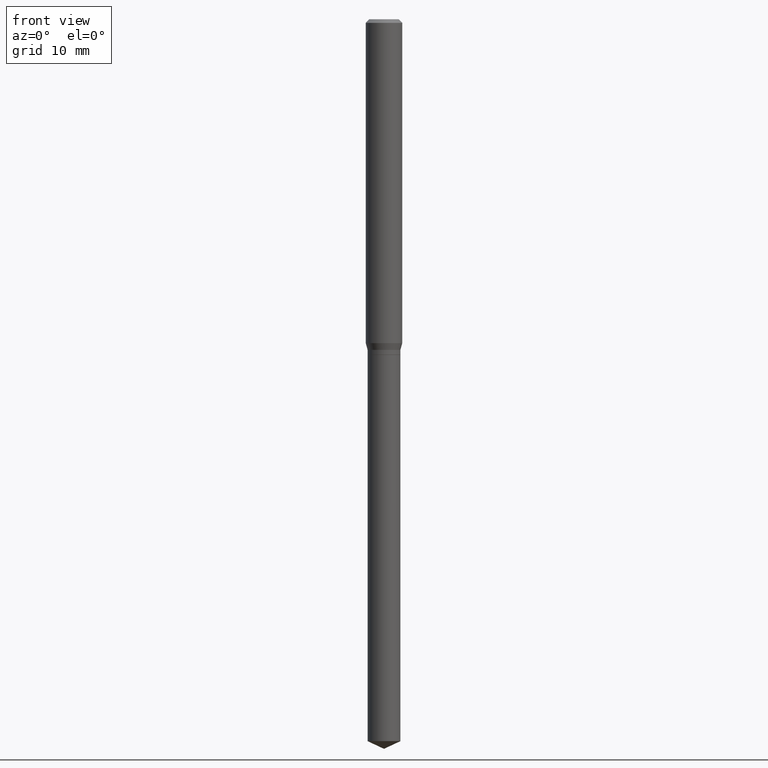
[diagram: clean part render]
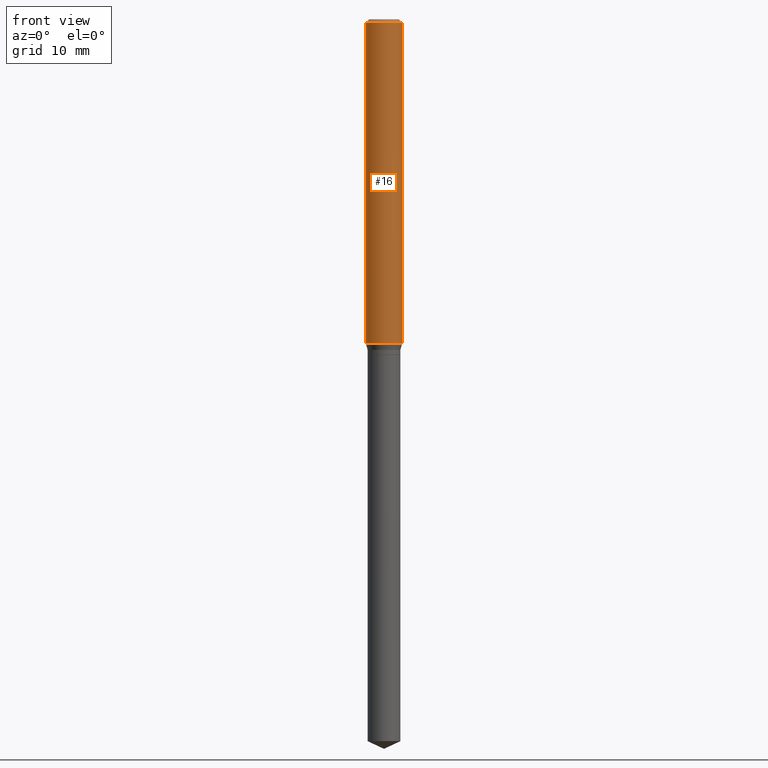
[diagram: same view with one face highlighted and labeled with its STEP entity id]
A machine part, front view. The second image highlights one B-rep face of the part: STEP entity #16.
In plain terms, the highlighted cylindrical surface (edge-blend (fillet) strip) has radius 1.4999 mm, axis along (-0, 0, 1).
Its self-contained STEP definition (entity closure, byte-faithful):
#16 = ADVANCED_FACE ( 'NONE', ( #383 ), #152, .T. ) ;
#28 = VERTEX_POINT ( 'NONE', #222 ) ;
#37 = CARTESIAN_POINT ( 'NONE',  ( 0.000000000000000000, 0.000000000000000000, 0.000000000000000000 ) ) ;
#42 = CARTESIAN_POINT ( 'NONE',  ( -0.05905000000000006771, 4.195754854663396409E-16, -2.904631170795525045E-30 ) ) ;
#44 = LINE ( 'NONE', #42, #467 ) ;
#59 = VERTEX_POINT ( 'NONE', #374 ) ;
#60 = EDGE_CURVE ( 'NONE', #59, #28, #457, .T. ) ;
#65 = ORIENTED_EDGE ( 'NONE', *, *, #90, .T. ) ;
#81 = CIRCLE ( 'NONE', #356, 0.05904999999999999832 ) ;
#87 = DIRECTION ( 'NONE',  ( -2.445468806185136597E-29, 3.491481338843145583E-15, 1.000000000000000000 ) ) ;
#88 = VECTOR ( 'NONE', #371, 39.37007874015748143 ) ;
#90 = EDGE_CURVE ( 'NONE', #213, #59, #475, .T. ) ;
#119 = ORIENTED_EDGE ( 'NONE', *, *, #160, .F. ) ;
#121 = VERTEX_POINT ( 'NONE', #268 ) ;
#129 = CARTESIAN_POINT ( 'NONE',  ( 2.888098660104664642E-31, -4.123439461173780879E-17, -0.01181000000000007565 ) ) ;
#133 = CARTESIAN_POINT ( 'NONE',  ( -0.05905000000000013016, -3.241176011838822810E-15, -1.048480900235343238 ) ) ;
#152 = CYLINDRICAL_SURFACE ( 'NONE', #410, 0.05905000000000006771 ) ;
#160 = EDGE_CURVE ( 'NONE', #121, #28, #81, .T. ) ;
#190 = CARTESIAN_POINT ( 'NONE',  ( 2.564027335406442379E-29, -3.660751497305162698E-15, -1.048480900235343238 ) ) ;
#213 = VERTEX_POINT ( 'NONE', #133 ) ;
#222 = CARTESIAN_POINT ( 'NONE',  ( 0.05904999999999999832, -4.535783407291118600E-16, -0.01181000000000007565 ) ) ;
#227 = CARTESIAN_POINT ( 'NONE',  ( 0.05905000000000006771, -4.123439461173745257E-16, 2.879382386107503723E-30 ) ) ;
#231 = EDGE_CURVE ( 'NONE', #213, #121, #44, .T. ) ;
#263 = DIRECTION ( 'NONE',  ( -2.445468806185136597E-29, 3.491481338843145583E-15, 1.000000000000000000 ) ) ;
#266 = DIRECTION ( 'NONE',  ( 1.000000000000000000, -6.982962677686265133E-15, 0.000000000000000000 ) ) ;
#268 = CARTESIAN_POINT ( 'NONE',  ( -0.05904999999999999832, -1.431417460492110129E-15, -0.01181000000000007565 ) ) ;
#275 = EDGE_LOOP ( 'NONE', ( #282, #65, #326, #119 ) ) ;
#282 = ORIENTED_EDGE ( 'NONE', *, *, #231, .F. ) ;
#305 = DIRECTION ( 'NONE',  ( 1.000000000000000000, -6.982962677686266711E-15, 4.876176775795936353E-29 ) ) ;
#326 = ORIENTED_EDGE ( 'NONE', *, *, #60, .T. ) ;
#338 = DIRECTION ( 'NONE',  ( -2.445468806185136597E-29, 3.491481338843145583E-15, 1.000000000000000000 ) ) ;
#356 = AXIS2_PLACEMENT_3D ( 'NONE', #129, #87, #387 ) ;
#371 = DIRECTION ( 'NONE',  ( -2.445468806185136877E-29, 3.491481338843145188E-15, 1.000000000000000000 ) ) ;
#374 = CARTESIAN_POINT ( 'NONE',  ( 0.05905000000000013016, -4.073095443422537618E-15, -1.048480900235343238 ) ) ;
#383 = FACE_OUTER_BOUND ( 'NONE', #275, .T. ) ;
#387 = DIRECTION ( 'NONE',  ( 1.000000000000000000, -6.982962677686266711E-15, 0.000000000000000000 ) ) ;
#410 = AXIS2_PLACEMENT_3D ( 'NONE', #37, #263, #305 ) ;
#442 = AXIS2_PLACEMENT_3D ( 'NONE', #190, #338, #266 ) ;
#457 = LINE ( 'NONE', #227, #88 ) ;
#465 = DIRECTION ( 'NONE',  ( -2.445468806185136877E-29, 3.491481338843145188E-15, 1.000000000000000000 ) ) ;
#467 = VECTOR ( 'NONE', #465, 39.37007874015748143 ) ;
#475 = CIRCLE ( 'NONE', #442, 0.05905000000000013016 ) ;